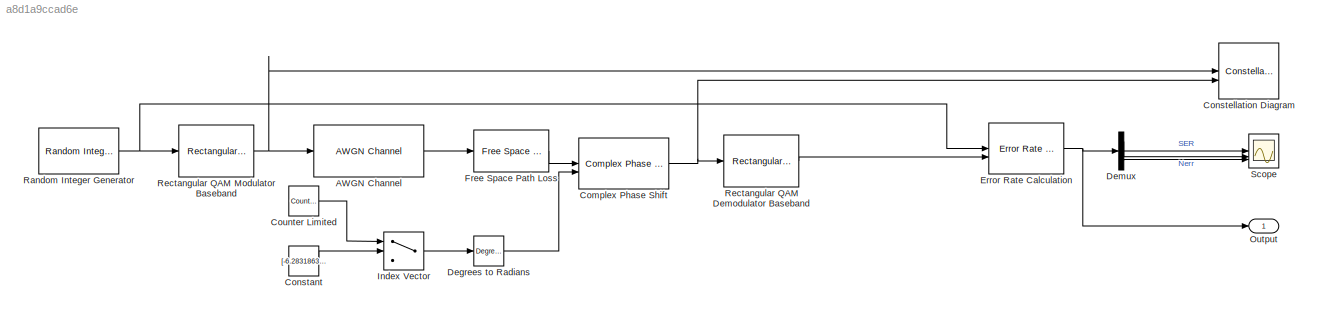
MODEL slx_a8d1a9ccad6e
KIND model
CONFIG AbsTol = auto
CONFIG EnableMultiTasking = off
CONFIG FixedStep = auto
CONFIG MaxStep = auto
CONFIG MinStep = auto
CONFIG RelTol = 1e-3
CONFIG SampleTimeConstraint = Unconstrained
CONFIG SolverName = VariableStepDiscrete
CONFIG StartTime = 0.0
CONFIG StopTime = 1000
BLOCK [Reference] AWGN Channel  REF=commchan3/AWGN
Channel
  Commented = through
  SourceBlock = commchan3/AWGN\nChannel
  SourceType = AWGN Channel
BLOCK [Reference] Complex Phase Shift  REF=commutil2/Complex Phase
Shift
  SourceBlock = commutil2/Complex Phase\nShift
  SourceType = Complex Phase Shift
BLOCK [Constant] Constant
  Value = [-6.2831863551021 -6.2831863551021 -6.2831863551021 -6.2831863551021 -6.2831863551021 -6.2831863551021 -6.2831863551021 -6.2831863551021 -6.2831863551021 -6.2831863551021 -6.2831863551021 -6.2831863551021 -6.2831863551021 -6.2831863551021 -6.2831863551021 -6.2831863551021 -6.2831863551021 -6.2831863551021 -6.2831863551021 -6.2831863551021 -6.2831863551021 -6.2831863551021 -6.2831863551021 -6.28318...<+1318ch>
BLOCK [ConstellationDiagram] Constellation Diagram
  Commented = on
  EnableMeasurements = on
  GraphicalSettings = {"Style":{"BackgroundColor":[0.12941176470588237,0.12941176470588237,0.12941176470588237],"AxesColor":[0.07058823529411765,0.07058823529411765,0.07058823529411765],"LabelsColor":[0.8509803921568627,0.8509803921568627,0.8509803921568627],"LineStyle":["NONE","NONE"],"LineColor":[[1,1,0.06666666666666667],[0.07450980392156863,0.6235294117647059,1]],"LineWidth":[1,1],"Marker":[".","."],"IsRefLine":[fa...<+767ch>
  NumInputPorts = 2
  ReferenceConstellation = {[-7+7i  -7+5i  -7+3i  -7+1i  -7-1i  -7-3i  -7-5i  -7-7i  -5+7i  -5+5i  -5+3i  -5+1i  -5-1i  -5-3i  -5-5i  -5-7i  -3+7i  -3+5i  -3+3i  -3+1i  -3-1i  -3-3i  -3-5i  -3-7i  -1+7i  -1+5i  -1+3i  -1+1i  -1-1i  -1-3i  -1-5i  -1-7i   1+7i   1+5i   1+3i   1+1i   1-1i   1-3i   1-5i   1-7i   3+7i   3+5i   3+3i   3+1i   3-1i   3-3i   3-5i   3-7i   5+7i   5+5i   5+3i   5+1i   5-1i   5-3i   5-5i   5-7i   7+7i ...<+141ch>
  ScopeFrameLocation = window
  ShowLegend = on
  ShowReferenceConstellation = off
  SymbolsToDisplay = 500
  SymbolsToDisplaySource = Property
  WasSavedAsWebScope = on
  WindowPosition = [1.000000,49.000000,1536.000000,793.000000,]
  XLimits = [-20.44,17.29]
  YLimits = [-10.88,9.77]
BLOCK [Reference] Counter Limited  REF=simulink/Sources/Counter
Limited
  SourceBlock = simulink/Sources/Counter\nLimited
  SourceType = Counter Limited
BLOCK [Reference] Degrees to Radians  REF=simulink_extras/Transformations/Degrees to
Radians
  SourceBlock = simulink_extras/Transformations/Degrees to\nRadians
  SourceType = DegreesToRadians
BLOCK [Demux] Demux
  Outputs = 3
BLOCK [Reference] Error Rate Calculation  REF=commsink2/Error Rate
Calculation
  SourceBlock = commsink2/Error Rate\nCalculation
  SourceType = Error Rate Calculation
BLOCK [Reference] Free Space Path Loss  REF=commrflib2/Free Space
Path Loss
  Commented = through
  SourceBlock = commrflib2/Free Space\nPath Loss
  SourceType = Free Space Path Loss
BLOCK [MultiPortSwitch] Index Vector
  DataPortOrder = Zero-based contiguous
  InputSameDT = off
  Inputs = 1
  SaturateOnIntegerOverflow = off
  zeroidx = on
BLOCK [Outport] Output
  SignalName = ErrorVec
BLOCK [Reference] Random Integer Generator  REF=commrandsrc3/Random Integer
Generator
  SourceBlock = commrandsrc3/Random Integer\nGenerator
  SourceType = Random Integer Generator
BLOCK [Reference] Rectangular QAM Demodulator Baseband  REF=commdigbbndam3/Rectangular QAM
Demodulator
Baseband
  SourceBlock = commdigbbndam3/Rectangular QAM\nDemodulator\nBaseband
  SourceType = Rectangular QAM Demodulator Baseband
BLOCK [Reference] Rectangular QAM Modulator Baseband  REF=commdigbbndam3/Rectangular QAM
Modulator
Baseband
  SourceBlock = commdigbbndam3/Rectangular QAM\nModulator\nBaseband
  SourceType = Rectangular QAM Modulator Baseband
BLOCK [Scope] Scope
  Floating = off
  NumInputPorts = 3
  ScopeSpecificationString = Simulink.scopes.TimeScopeBlockCfg('CurrentConfiguration', extmgr.ConfigurationSet(extmgr.Configuration('Core','General UI',true),extmgr.Configuration('Core','Source UI',true),extmgr.Configuration('Sources','WiredSimulink',true,'DataLoggingVariableName','ScopeData1'),extmgr.Configuration('Visuals','Time Domain',true,'SerializedDisplays',{struct('MinYLimReal','-0.11376','MaxYLimReal','1.12375','YLab...<+2191ch>
LINE AWGN Channel:1 -> Free Space Path Loss:1
NET Complex Phase Shift:1 -> Constellation Diagram:2, Rectangular QAM Demodulator Baseband:1
LINE Constant:1 -> Index Vector:2
LINE Counter Limited:1 -> Index Vector:1
LINE Degrees to Radians:1 -> Complex Phase Shift:2
LINE Demux:1 -> Scope:1
LINE Demux:2 -> Scope:2
LINE Demux:3 -> Scope:3
NET Error Rate Calculation:1 -> Demux:1, Output:1
LINE Free Space Path Loss:1 -> Complex Phase Shift:1
LINE Index Vector:1 -> Degrees to Radians:1
NET Random Integer Generator:1 -> Error Rate Calculation:1, Rectangular QAM Modulator Baseband:1
LINE Rectangular QAM Demodulator Baseband:1 -> Error Rate Calculation:2
NET Rectangular QAM Modulator Baseband:1 -> AWGN Channel:1, Constellation Diagram:1
note: NET lines group one-source signal fan-out (src -> all destinations, sorted); 1:1 wires keep LINE
